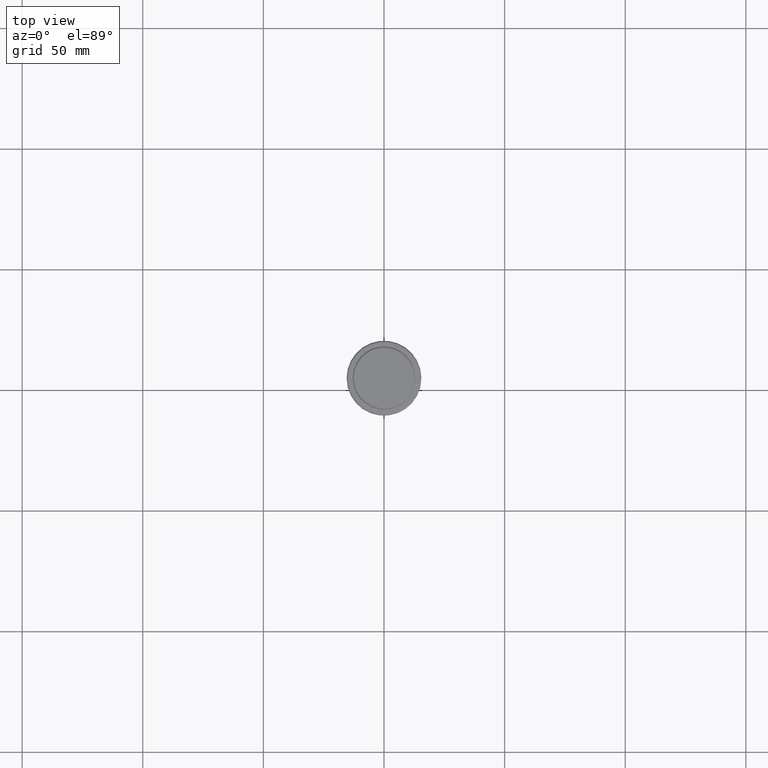
[diagram: clean part render]
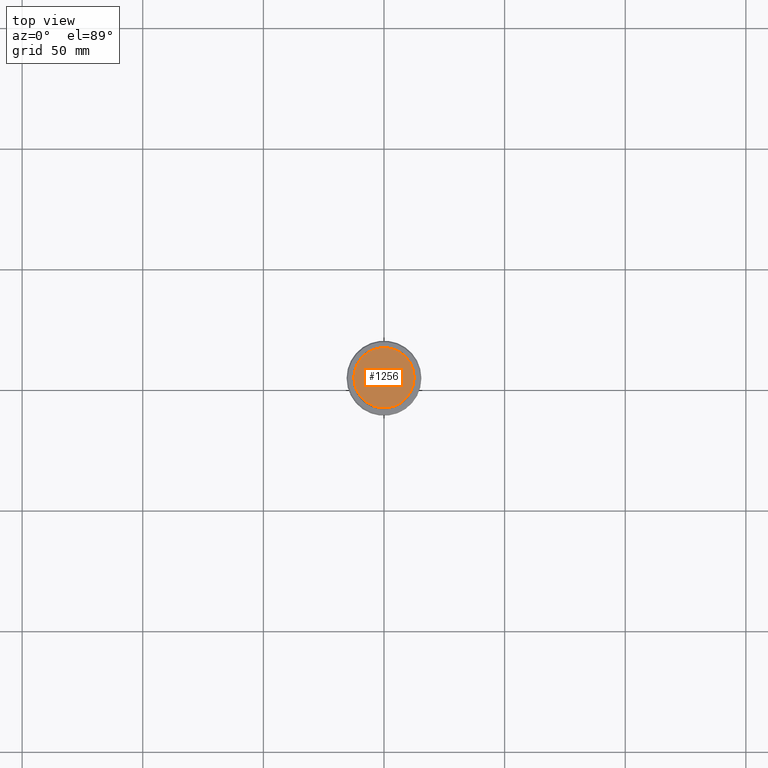
[diagram: same view with one face highlighted and labeled with its STEP entity id]
A machine part, top view. The second image highlights one B-rep face of the part: STEP entity #1256.
In plain terms, the highlighted planar face has unit normal (0, -0, 1).
Its self-contained STEP definition (entity closure, byte-faithful):
#27 = DIRECTION ( 'NONE',  ( 0.000000000000000000, -0.000000000000000000, 1.000000000000000000 ) ) ;
#124 = CARTESIAN_POINT ( 'NONE',  ( 0.000000000000000000, 0.000000000000000000, 0.000000000000000000 ) ) ;
#249 = DIRECTION ( 'NONE',  ( 1.000000000000000000, 0.000000000000000000, 0.000000000000000000 ) ) ;
#253 = DIRECTION ( 'NONE',  ( -0.000000000000000000, -0.000000000000000000, 1.000000000000000000 ) ) ;
#419 = CARTESIAN_POINT ( 'NONE',  ( -12.49999999999998579, 0.000000000000000000, 0.000000000000000000 ) ) ;
#428 = EDGE_CURVE ( 'NONE', #1012, #681, #741, .T. ) ;
#673 = CARTESIAN_POINT ( 'NONE',  ( 0.000000000000000000, 0.000000000000000000, 0.000000000000000000 ) ) ;
#676 = CARTESIAN_POINT ( 'NONE',  ( 0.000000000000000000, 0.000000000000000000, 0.000000000000000000 ) ) ;
#681 = VERTEX_POINT ( 'NONE', #419 ) ;
#694 = CARTESIAN_POINT ( 'NONE',  ( 12.49999999999998579, 1.561424668912874125E-15, 0.000000000000000000 ) ) ;
#734 = AXIS2_PLACEMENT_3D ( 'NONE', #124, #253, #1229 ) ;
#735 = AXIS2_PLACEMENT_3D ( 'NONE', #673, #1312, #996 ) ;
#741 = CIRCLE ( 'NONE', #734, 12.49999999999998579 ) ;
#802 = EDGE_CURVE ( 'NONE', #681, #1012, #829, .T. ) ;
#815 = PLANE ( 'NONE',  #830 ) ;
#829 = CIRCLE ( 'NONE', #735, 12.49999999999998579 ) ;
#830 = AXIS2_PLACEMENT_3D ( 'NONE', #676, #27, #249 ) ;
#996 = DIRECTION ( 'NONE',  ( 1.000000000000000000, 0.000000000000000000, 0.000000000000000000 ) ) ;
#1012 = VERTEX_POINT ( 'NONE', #694 ) ;
#1115 = ORIENTED_EDGE ( 'NONE', *, *, #802, .T. ) ;
#1184 = EDGE_LOOP ( 'NONE', ( #1115, #1283 ) ) ;
#1229 = DIRECTION ( 'NONE',  ( 1.000000000000000000, 0.000000000000000000, 0.000000000000000000 ) ) ;
#1256 = ADVANCED_FACE ( 'NONE', ( #1345 ), #815, .T. ) ;
#1283 = ORIENTED_EDGE ( 'NONE', *, *, #428, .T. ) ;
#1312 = DIRECTION ( 'NONE',  ( -0.000000000000000000, -0.000000000000000000, 1.000000000000000000 ) ) ;
#1345 = FACE_OUTER_BOUND ( 'NONE', #1184, .T. ) ;